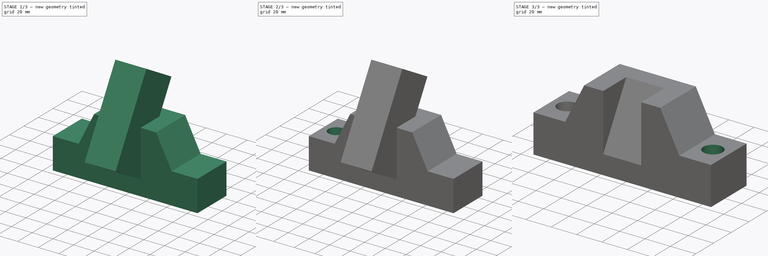
[diagram: build sequence overview — one tinted view per stage of 3, left to right]
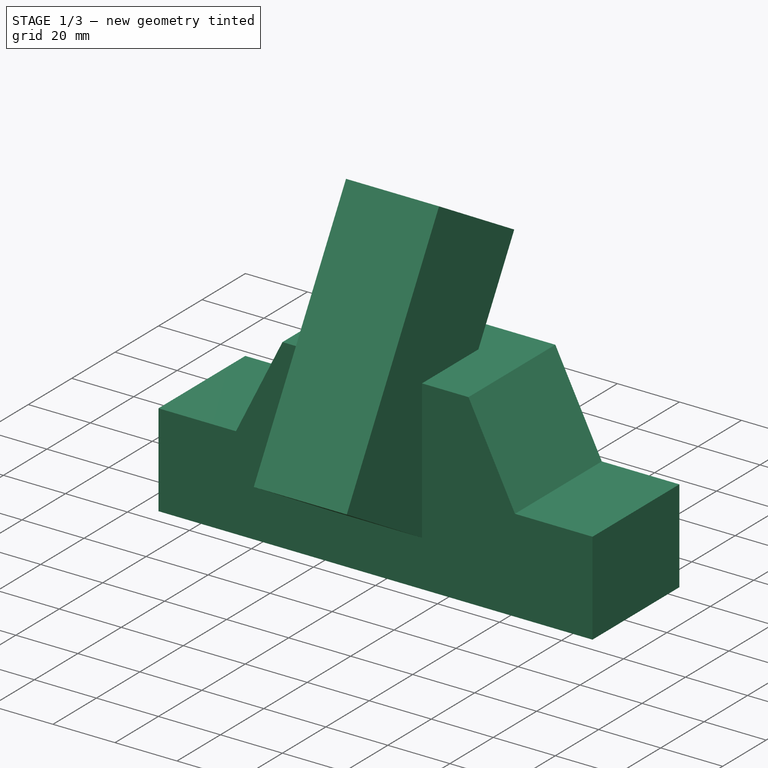
[diagram: stage 1 of 3 — iso view after this stage's code; geometry added in this stage tinted green]
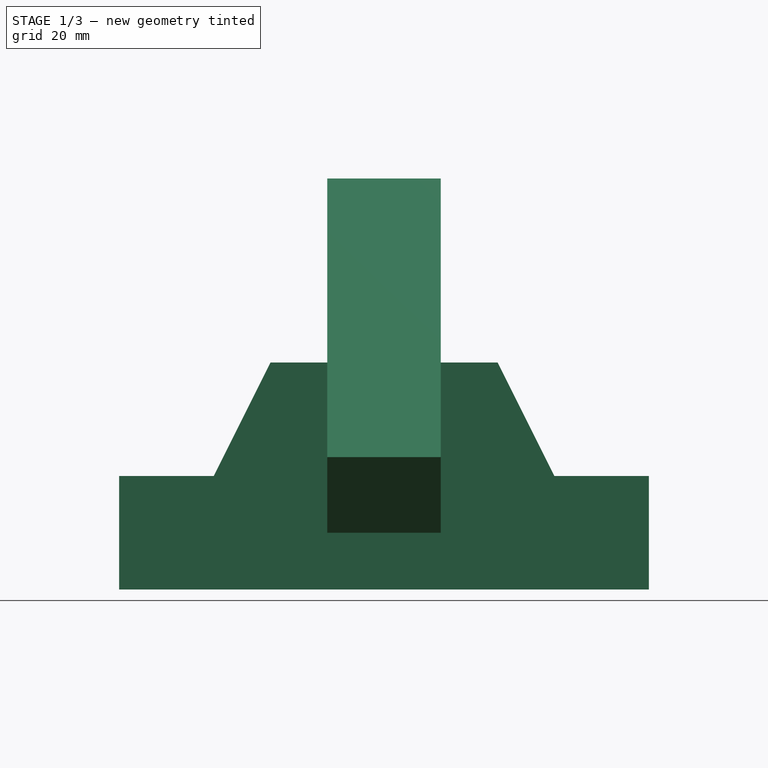
[diagram: stage 1 of 3 — front view after this stage's code; geometry added in this stage tinted green]
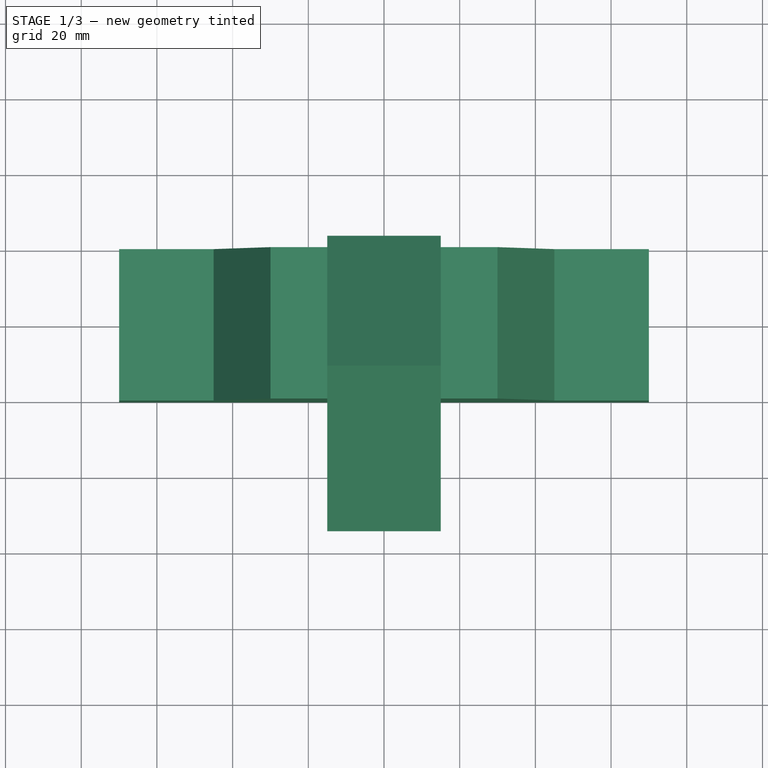
[diagram: stage 1 of 3 — top view after this stage's code; geometry added in this stage tinted green]
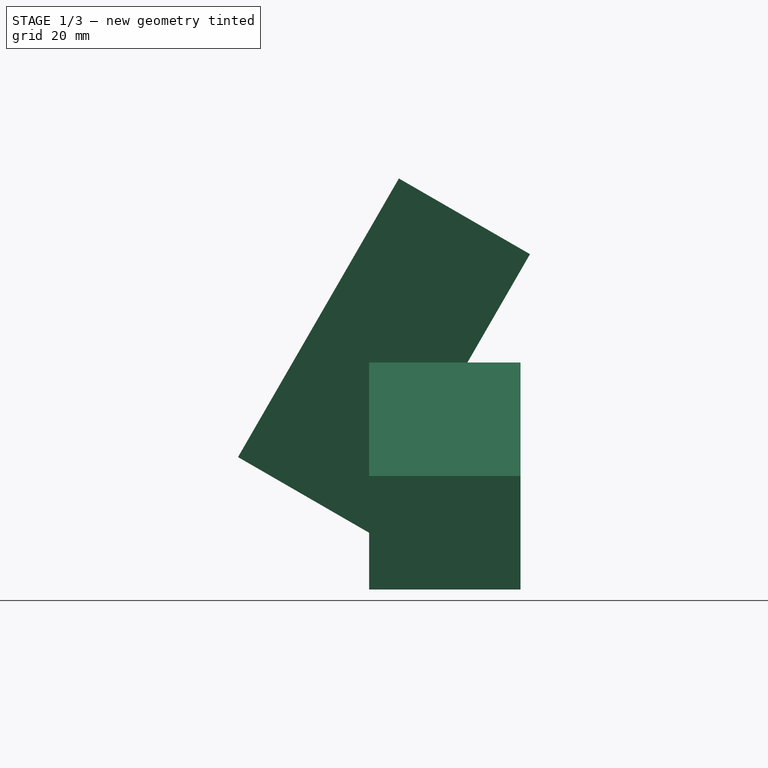
[diagram: stage 1 of 3 — right view after this stage's code; geometry added in this stage tinted green]
FCSTD DOCUMENT  (FreeCAD 0.16R)
Label: ejer3
License: All rights reserved
LicenseURL: http://en.wikipedia.org/wiki/All_rights_reserved
objects: Sketcher::SketchObject×3, PartDesign::Pad×2, PartDesign::Pocket×1, PartDesign::Mirrored×1, Part::Cut×1
note: 11 computed .brp shape members not serialized (recipe doc carries the construction recipe); baked Part::Feature solids carry a one-line shape summary decoded from their .brp

FEATURE [Sketcher::SketchObject] Sketch
  Placement = pos=(0,0,0) rot=(-1,0,0;4.71239rad)
  sketch-geometry (8):
    g0: LineSegment StartX=-70 StartY=0 StartZ=0 EndX=70 EndY=0 EndZ=0
    g1: LineSegment StartX=70 StartY=0 StartZ=0 EndX=70 EndY=30 EndZ=0
    g2: LineSegment StartX=70 StartY=30 StartZ=0 EndX=45 EndY=30 EndZ=0
    g3: LineSegment StartX=45 StartY=30 StartZ=0 EndX=30 EndY=60 EndZ=0
    g4: LineSegment StartX=30 StartY=60 StartZ=0 EndX=-30 EndY=60 EndZ=0
    g5: LineSegment StartX=-30 StartY=60 StartZ=0 EndX=-45 EndY=30 EndZ=0
    g6: LineSegment StartX=-45 StartY=30 StartZ=0 EndX=-70 EndY=30 EndZ=0
    g7: LineSegment StartX=-70 StartY=30 StartZ=0 EndX=-70 EndY=0 EndZ=0
  constraints (22):
    c: Coincident(g0,g1)
    c: Coincident(g1,g2)
    c: Coincident(g2,g3)
    c: Coincident(g3,g4)
    c: Coincident(g4,g5)
    c: Coincident(g5,g6)
    c: Coincident(g6,g7)
    c: Coincident(g7,g0)
    c: Vertical(g7)
    c: PointOnObject(g-1,g0)
    c: Symmetric(g0,g0,g-2)
    c: Vertical(g1)
    c: Equal(g7,g1)
    c: Horizontal(g6)
    c: Horizontal(g2)
    c: DistanceY(g7,g7) = 30
    c: DistanceX(g0,g0) = 140
    c: DistanceX(g6,g6) = 25
    c: DistanceX(g2,g2) = 25
    c: Symmetric(g4,g3,g-2)
    c: DistanceX(g5,g4) = 15
    c: DistanceY(g0,g3) = 60
FEATURE [PartDesign::Pad] Pad
  Length = 40
  Length2 = 100
  Placement = pos=(0,0,0) rot=(-1,0,0;4.71239rad)
  Reversed = true
  Sketch = -> Sketch
  Type = 0
FEATURE [Sketcher::SketchObject] Sketch002
  Placement = pos=(0,0,15) rot=(1,0,0;5.75959rad)
  sketch-geometry (4):
    g0: LineSegment StartX=-15 StartY=0 StartZ=0 EndX=15 EndY=0 EndZ=0
    g1: LineSegment StartX=15 StartY=0 StartZ=0 EndX=15 EndY=-40 EndZ=0
    g2: LineSegment StartX=15 StartY=-40 StartZ=0 EndX=-15 EndY=-40 EndZ=0
    g3: LineSegment StartX=-15 StartY=-40 StartZ=0 EndX=-15 EndY=0 EndZ=0
  constraints (11):
    c: Coincident(g0,g1)
    c: Coincident(g1,g2)
    c: Coincident(g2,g3)
    c: Coincident(g3,g0)
    c: Horizontal(g2)
    c: Vertical(g1)
    c: Vertical(g3)
    c: Symmetric(g0,g0,g-2)
    c: DistanceY(g3,g3) = 40
    c: PointOnObject(g-1,g0)
    c: DistanceX(g2,g2) = 30
FEATURE [PartDesign::Pad] Pad001
  Length = 85
  Length2 = 100
  Placement = pos=(0,0,15) rot=(1,0,0;5.75959rad)
  Sketch = -> Sketch002
  Type = 0
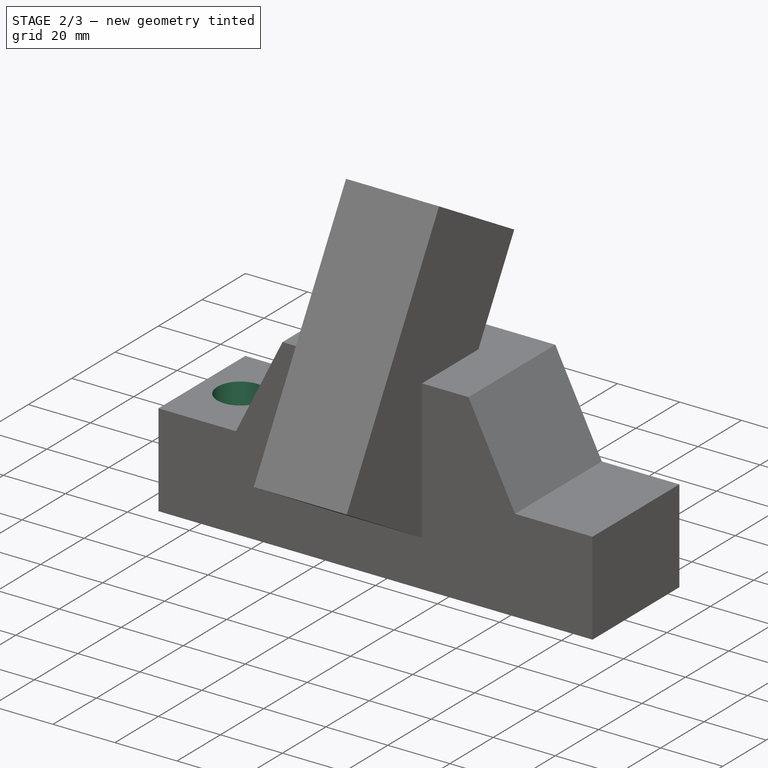
[diagram: stage 2 of 3 — iso view after this stage's code; geometry added in this stage tinted green]
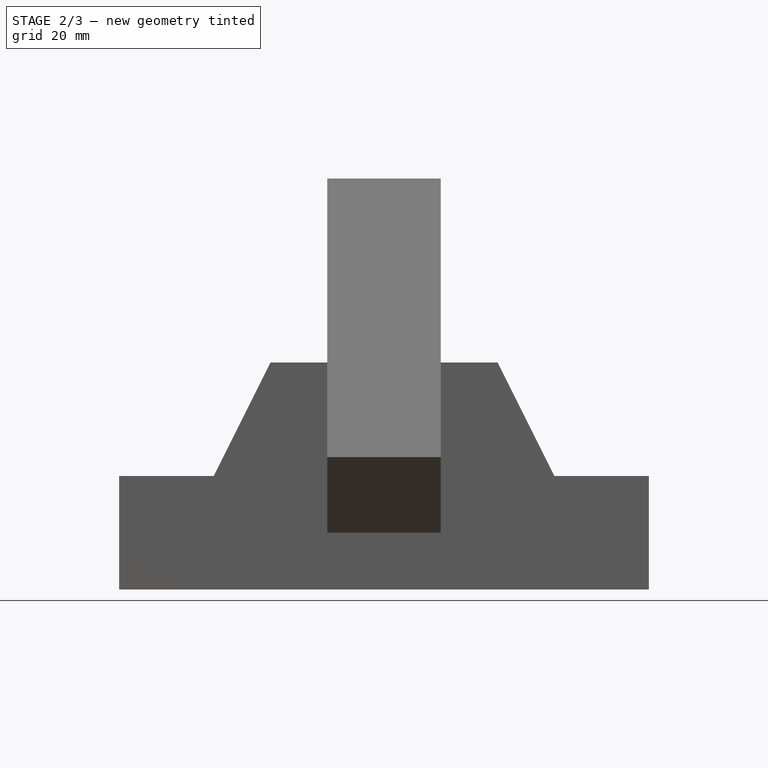
[diagram: stage 2 of 3 — front view after this stage's code; geometry added in this stage tinted green]
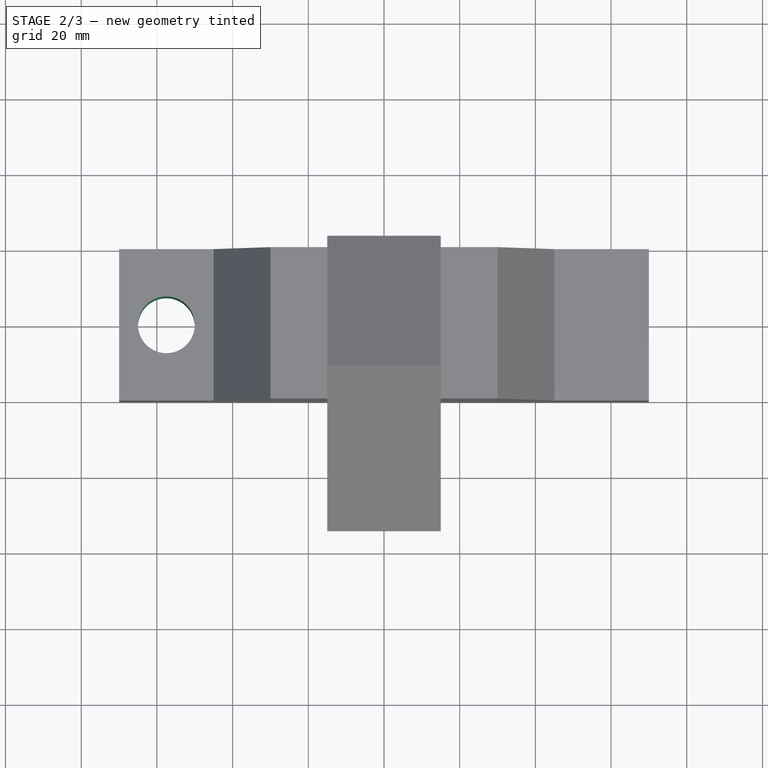
[diagram: stage 2 of 3 — top view after this stage's code; geometry added in this stage tinted green]
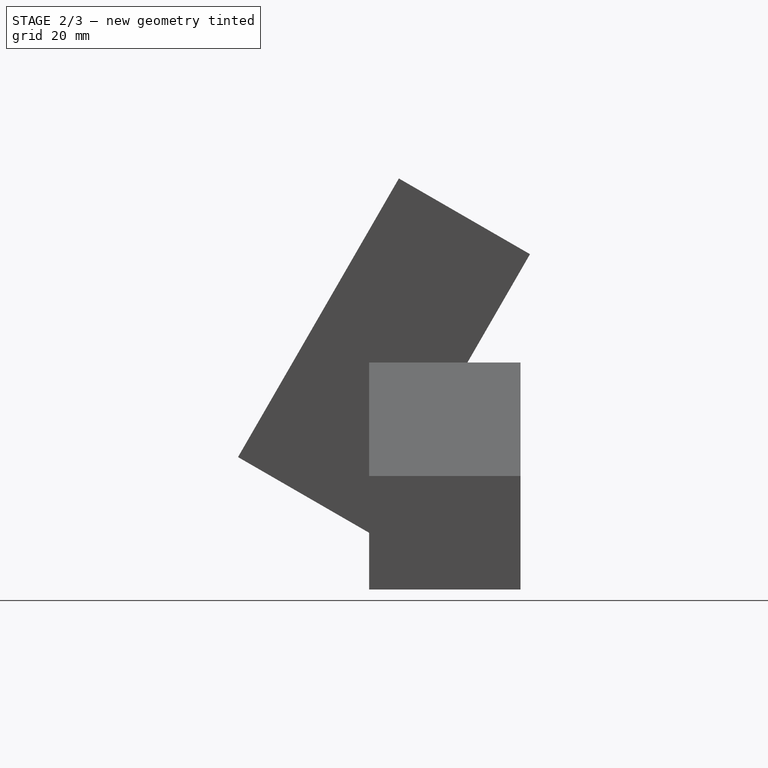
[diagram: stage 2 of 3 — right view after this stage's code; geometry added in this stage tinted green]
FEATURE [Sketcher::SketchObject] Sketch001
  ExternalGeometry = -> [Pad]
  Placement = pos=(0,0,30) rot=(0,0,1;3.14159rad)
  Support = -> Pad [Face3]
  sketch-geometry (1):
    g0: Circle CenterX=57.5 CenterY=-20 CenterZ=0 NormalX=0 NormalY=0 NormalZ=1 Radius=7.5
  constraints (3):
    c: DistanceX(g0,g-4) = 12.5
    c: DistanceY(g-4,g0) = 20
    c: Radius(g0) = 7.5
FEATURE [PartDesign::Pocket] Pocket
  Length = 5
  Placement = pos=(0,0,0) rot=(-1,0,0;4.71239rad)
  Sketch = -> Sketch001
  Type = 1
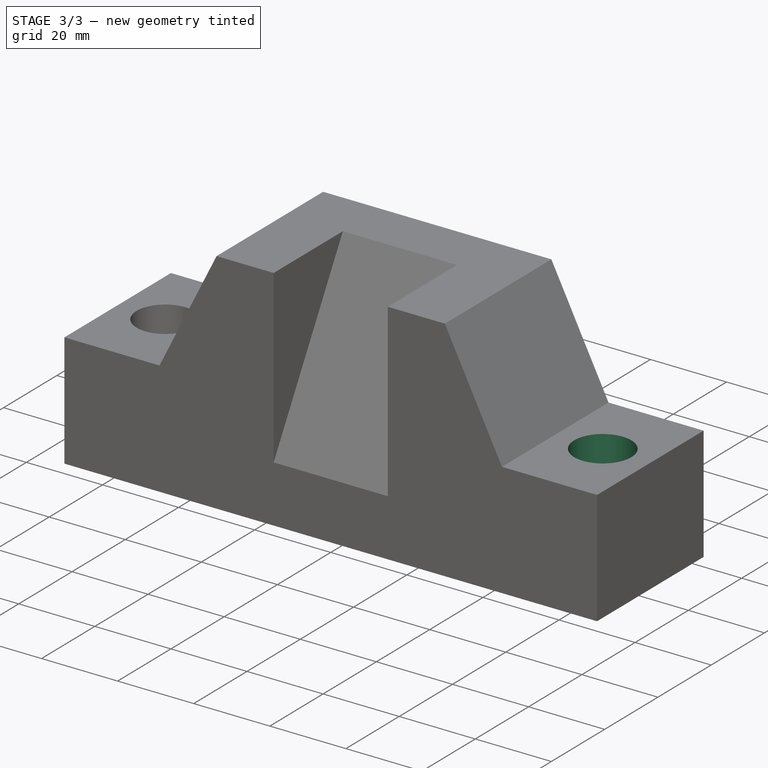
[diagram: stage 3 of 3 — iso view after this stage's code; geometry added in this stage tinted green]
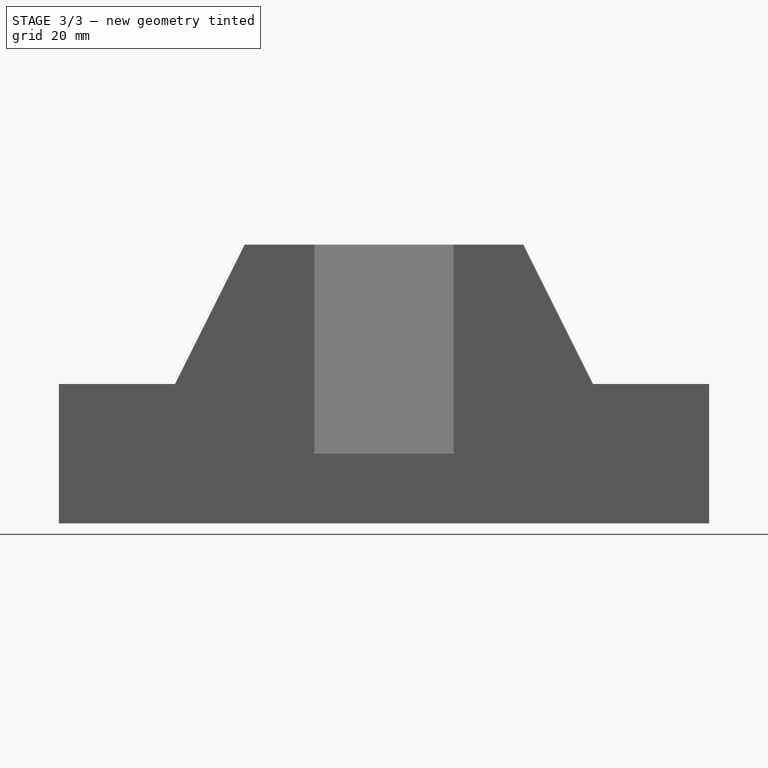
[diagram: stage 3 of 3 — front view after this stage's code; geometry added in this stage tinted green]
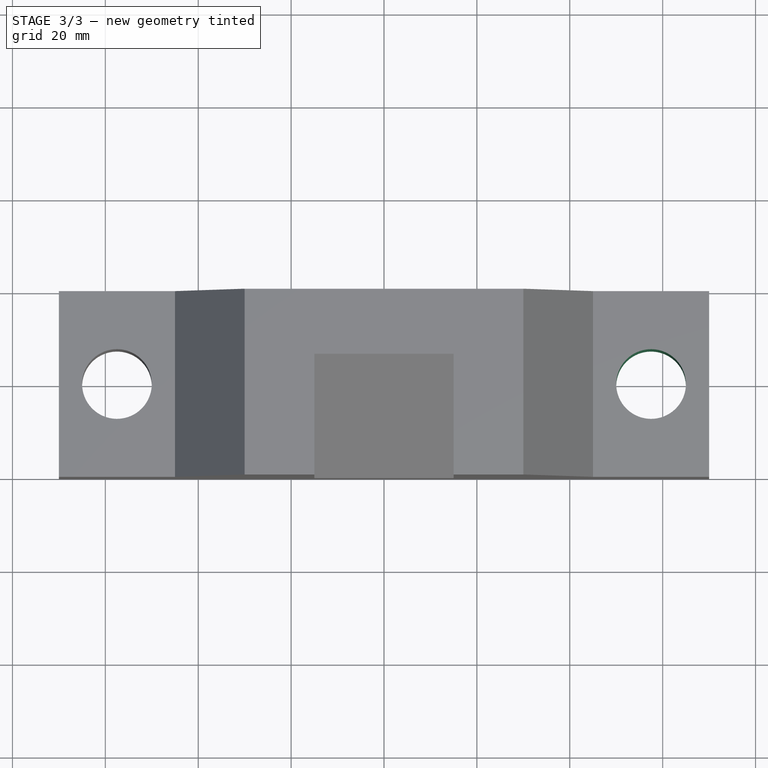
[diagram: stage 3 of 3 — top view after this stage's code; geometry added in this stage tinted green]
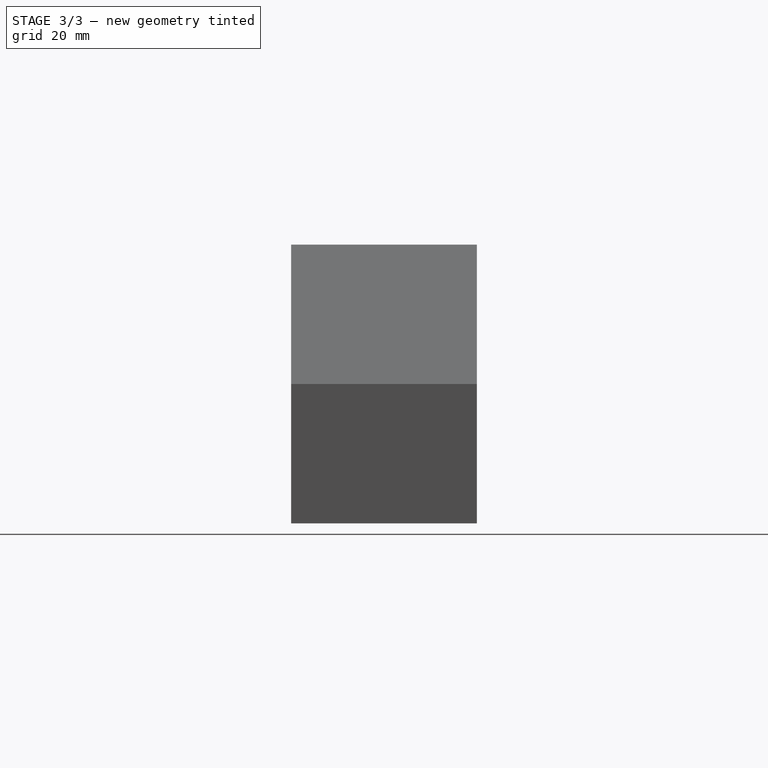
[diagram: stage 3 of 3 — right view after this stage's code; geometry added in this stage tinted green]
FEATURE [PartDesign::Mirrored] Mirrored
  MirrorPlane = -> Sketch001 [V_Axis]
  Originals = -> [Pocket]
  Placement = pos=(0,0,0) rot=(-1,0,0;4.71239rad)
FEATURE [Part::Cut] Cut
  Base = -> Mirrored
  Tool = -> Pad001
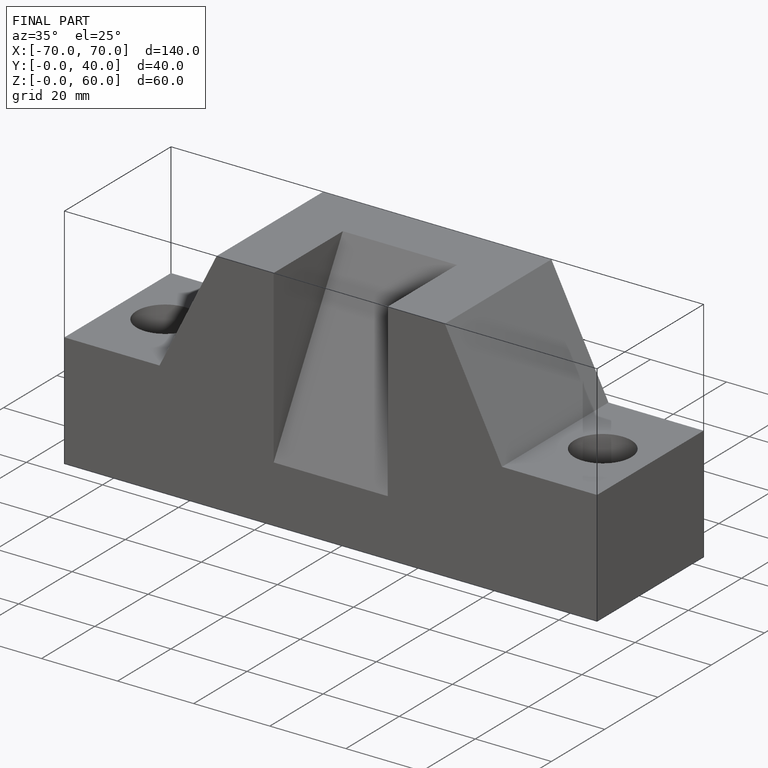
[diagram: finished part — iso view with bounding-box wireframe]
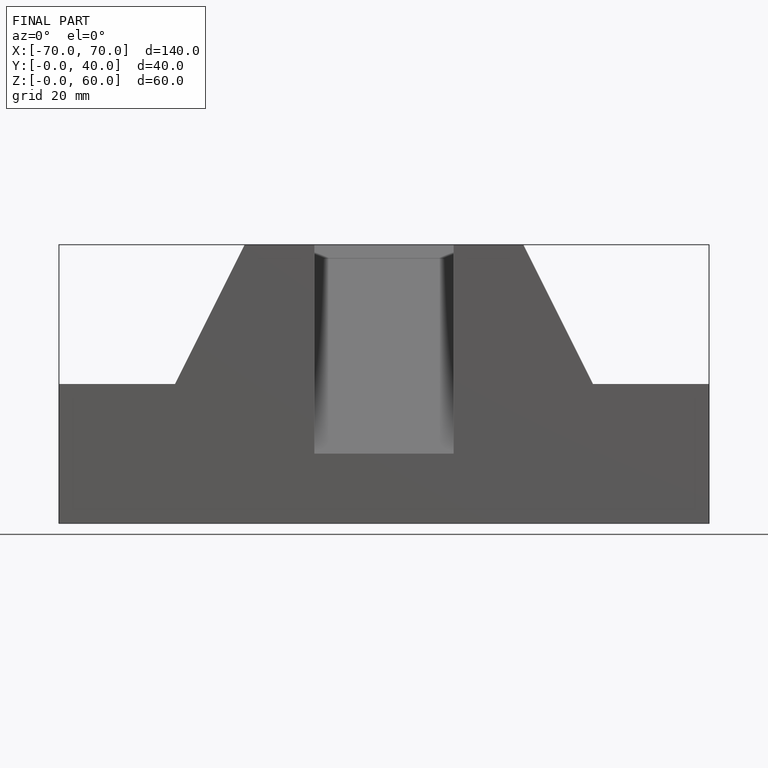
[diagram: finished part — front view with bounding-box wireframe]
